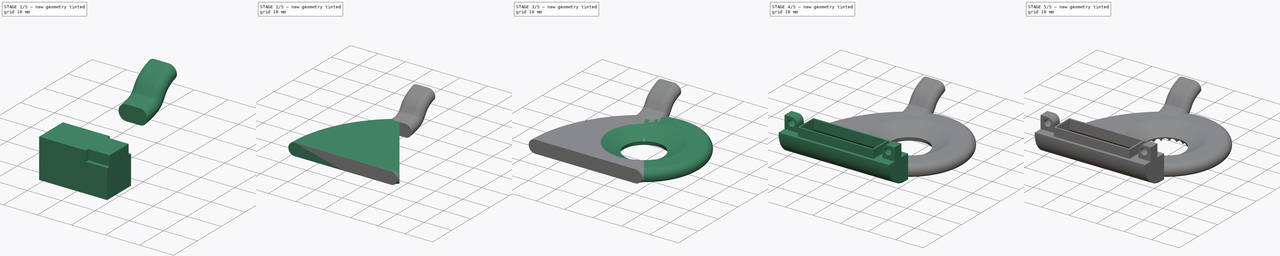
[diagram: build sequence overview — one tinted view per stage of 5, left to right]
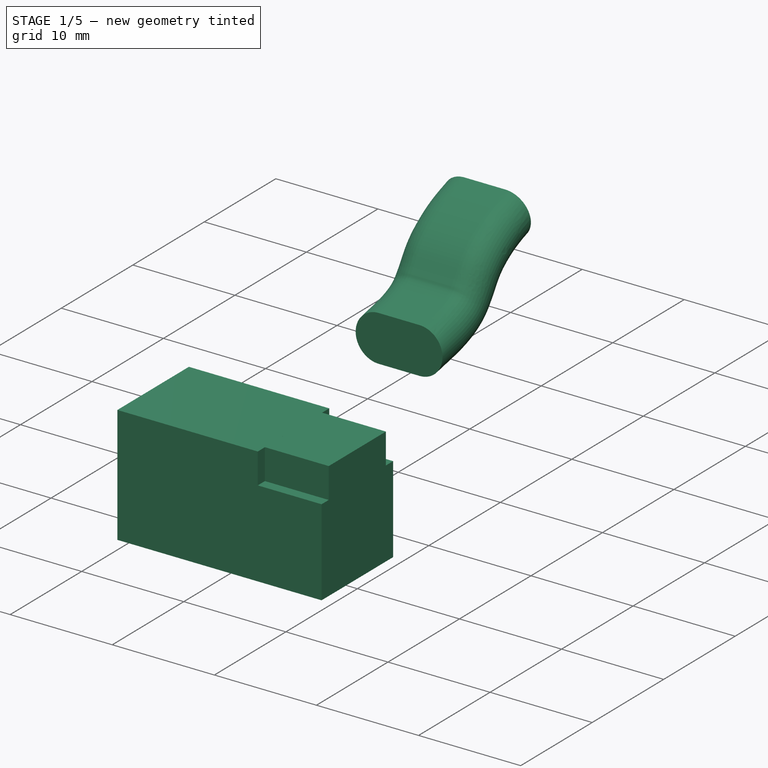
[diagram: stage 1 of 5 — iso view after this stage's code; geometry added in this stage tinted green]
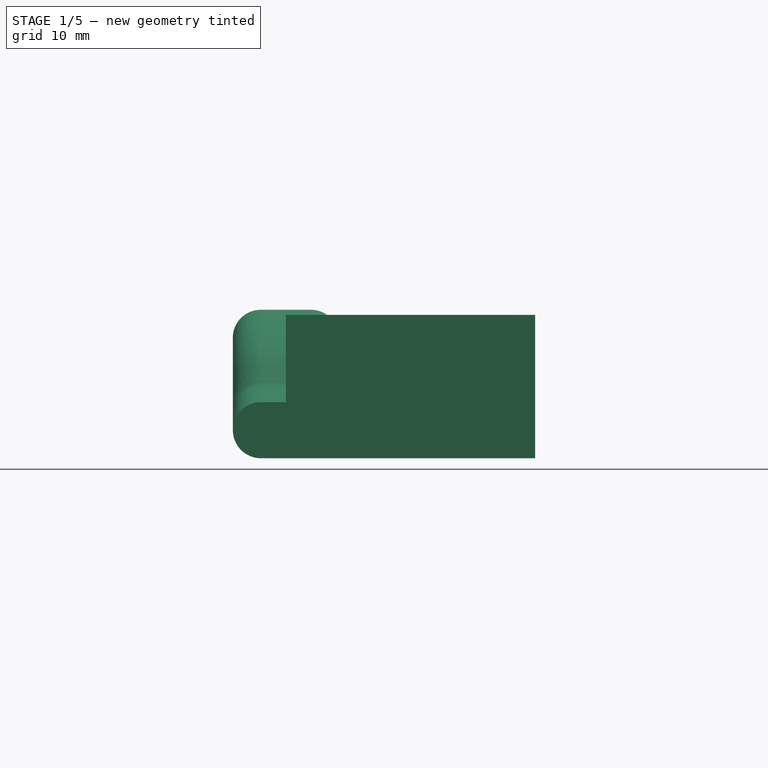
[diagram: stage 1 of 5 — front view after this stage's code; geometry added in this stage tinted green]
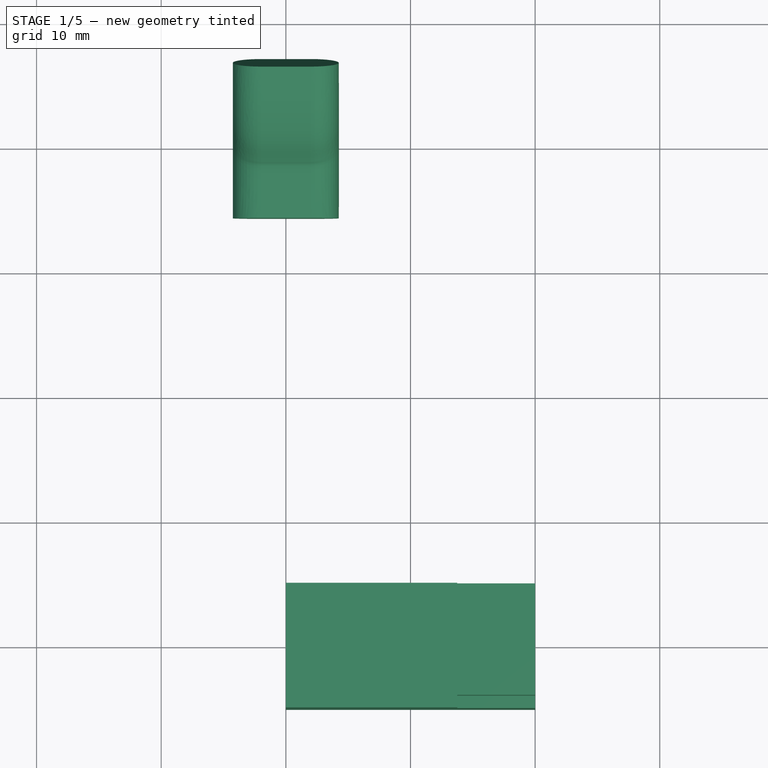
[diagram: stage 1 of 5 — top view after this stage's code; geometry added in this stage tinted green]
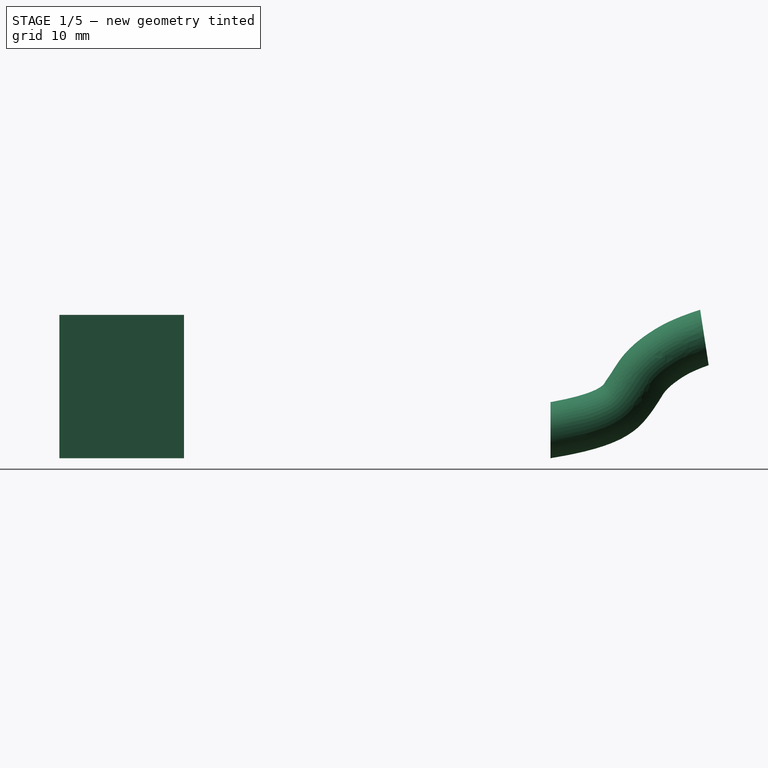
[diagram: stage 1 of 5 — right view after this stage's code; geometry added in this stage tinted green]
FCSTD DOCUMENT  (FreeCAD 0.18R16131 (Git))
Label: Cr-10 ExtruderFan
License: All rights reserved
LicenseURL: http://en.wikipedia.org/wiki/All_rights_reserved
objects: Sketcher::SketchObject×19, Part::Extrusion×11, Part::MultiFuse×7, Part::Cut×6, Part::Sweep×3, Part::MultiCommon×2, Part::Revolution×2, Part::Mirroring×1, Part::FeaturePython×1
note: 52 computed .brp shape members not serialized (recipe doc carries the construction recipe); baked Part::Feature solids carry a one-line shape summary decoded from their .brp

FEATURE [Sketcher::SketchObject] Sketch001  label="FrontExt"
  MapMode = 5
  Placement = pos=(0,0,0) rot=(1,0,0;1.5708rad)
  sketch-geometry (6):
    g0: LineSegment StartX=20 StartY=8.5 StartZ=0 EndX=20 EndY=0 EndZ=0
    g1: LineSegment StartX=13.75 StartY=8.5 StartZ=0 EndX=13.75 EndY=11.5 EndZ=0
    g2: LineSegment StartX=13.75 StartY=8.5 StartZ=0 EndX=20 EndY=8.5 EndZ=0
    g3: LineSegment StartX=13.75 StartY=11.5 StartZ=0 EndX=0 EndY=11.5 EndZ=0
    g4: LineSegment StartX=0 StartY=11.5 StartZ=0 EndX=0 EndY=0 EndZ=0
    g5: LineSegment StartX=0 StartY=0 StartZ=0 EndX=20 EndY=0 EndZ=0
  constraints (17):
    c: Coincident(g2,g0)
    c: Vertical(g0)
    c: PointOnObject(g0,g-1)
    c: DistanceY(g0,g2) = 8.5
    c: Vertical(g1)
    c: Coincident(g2,g1)
    c: DistanceY(g1,g1) = 3
    c: DistanceX(g-1,g0) = 20
    c: Coincident(g3,g1)
    c: Horizontal(g3)
    c: DistanceX(g3,g1) = 13.75
    c: Coincident(g4,g3)
    c: Coincident(g4,g-1)
    c: Coincident(g5,g4)
    c: Coincident(g5,g0)
    c: Vertical(g4)
    c: Horizontal(g2)
FEATURE [Sketcher::SketchObject] Sketch  label="RightExt"
  MapMode = 5
  Placement = pos=(0,0,0) rot=(0.57735,0.57735,0.57735;2.0944rad)
  sketch-geometry (9):
    g0: LineSegment StartX=3 StartY=0 StartZ=0 EndX=5 EndY=0 EndZ=0
    g1: LineSegment StartX=5 StartY=0 StartZ=0 EndX=5 EndY=8.5 EndZ=0
    g2: LineSegment StartX=-5 StartY=8.5 StartZ=0 EndX=-5 EndY=8 EndZ=0
    g3: LineSegment StartX=4 StartY=8.5 StartZ=0 EndX=5 EndY=8.5 EndZ=0
    g4: LineSegment StartX=-4 StartY=8.5 StartZ=0 EndX=-4 EndY=11.5 EndZ=0
    g5: LineSegment StartX=-4 StartY=11.5 StartZ=0 EndX=4 EndY=11.5 EndZ=0
    g6: LineSegment StartX=4 StartY=11.5 StartZ=0 EndX=4 EndY=8.5 EndZ=0
    g7: LineSegment StartX=-4 StartY=8.5 StartZ=0 EndX=-5 EndY=8.5 EndZ=0
    g8: ArcOfCircle CenterX=3 CenterY=8 CenterZ=0 NormalX=0 NormalY=0 NormalZ=1 AngleXU=0 Radius=8 StartAngle=3.14159 EndAngle=4.71239
  constraints (24):
    c: Coincident(g0,g1)
    c: Coincident(g7,g2)
    c: Horizontal(g0)
    c: Vertical(g1)
    c: Vertical(g2)
    c: DistanceX(g7,g1) = 10
    c: PointOnObject(g0,g-1)
    c: Symmetric(g1,g7,g-2)
    c: DistanceY(g0,g1) = 8.5
    c: Coincident(g4,g5)
    c: Coincident(g5,g6)
    c: Horizontal(g3)
    c: Vertical(g4)
    c: Vertical(g6)
    c: DistanceY(g6,g5) = 3
    c: Symmetric(g4,g5,g-2)
    c: Coincident(g4,g7)
    c: Coincident(g3,g6)
    c: Coincident(g3,g1)
    c: Horizontal(g7)
    c: DistanceX(g4,g5) = 8
    c: Tangent(g0,g8) = -1.5708
    c: Tangent(g2,g8) = -1.5708
    c: Radius(g8) = 8
FEATURE [Sketcher::SketchObject] Sketch002  label="RightInt"
  ExternalGeometry = -> [Sketch]
  Placement = pos=(0,0,0) rot=(0.57735,0.57735,0.57735;2.0944rad)
  sketch-geometry (8):
    g0: LineSegment StartX=-3.5 StartY=11.5 StartZ=0 EndX=-3.5 EndY=8 EndZ=0
    g1: LineSegment StartX=-3.5 StartY=11.5 StartZ=0 EndX=3.5 EndY=11.5 EndZ=0
    g2: LineSegment StartX=3.5 StartY=11.5 StartZ=0 EndX=3.5 EndY=8 EndZ=0
    g3: LineSegment StartX=3.5 StartY=8 StartZ=0 EndX=4.5 EndY=7 EndZ=0
    g4: LineSegment StartX=4.5 StartY=7 StartZ=0 EndX=4.5 EndY=0.5 EndZ=0
    g5: LineSegment StartX=4.5 StartY=0.5 StartZ=0 EndX=3 EndY=0.5 EndZ=0
    g6: ArcOfCircle CenterX=3 CenterY=8 CenterZ=0 NormalX=0 NormalY=0 NormalZ=1 AngleXU=0 Radius=7.5 StartAngle=3.26736 EndAngle=4.71239
    g7: LineSegment StartX=-3.5 StartY=8 StartZ=0 EndX=-4.44076 EndY=7.05924 EndZ=0
  constraints (23):
    c: Vertical(g0)
    c: Horizontal(g1)
    c: Coincident(g2,g1)
    c: Vertical(g2)
    c: Coincident(g3,g2)
    c: Coincident(g4,g3)
    c: Vertical(g4)
    c: Coincident(g1,g0)
    c: Angle(g3,g2) = 2.35619
    c: DistanceY(g1,g-4) = 0
    c: DistanceX(g1,g-4) = 0.5
    c: DistanceX(g-7,g0) = 0.5
    c: Coincident(g5,g4)
    c: Horizontal(g5)
    c: Coincident(g6,g-9)
    c: Tangent(g6,g5) = 1.5708
    c: Radius(g6) = 7.5
    c: Coincident(g7,g0)
    c: Coincident(g7,g6)
    c: Angle(g0,g7) = 2.35619
    c: DistanceY(g2,g-5) = 0.5
    c: DistanceY(g0,g-8) = 0.5
    c: DistanceX(g4,g-10) = 0.5
FEATURE [Sketcher::SketchObject] Sketch003  label="FrontInt"
  ExternalGeometry = -> [Sketch001]
  Placement = pos=(0,0,0) rot=(1,0,0;1.5708rad)
  sketch-geometry (6):
    g0: LineSegment StartX=0 StartY=11.5 StartZ=0 EndX=13.25 EndY=11.5 EndZ=0
    g1: LineSegment StartX=13.25 StartY=11.5 StartZ=0 EndX=13.25 EndY=8 EndZ=0
    g2: LineSegment StartX=13.25 StartY=8 StartZ=0 EndX=19.5 EndY=4.5 EndZ=0
    g3: LineSegment StartX=19.5 StartY=4.5 StartZ=0 EndX=19.5 EndY=0.5 EndZ=0
    g4: LineSegment StartX=19.5 StartY=0.5 StartZ=0 EndX=0 EndY=0.5 EndZ=0
    g5: LineSegment StartX=0 StartY=0.5 StartZ=0 EndX=0 EndY=11.5 EndZ=0
  constraints (18):
    c: Horizontal(g0)
    c: Coincident(g1,g0)
    c: Vertical(g1)
    c: Coincident(g2,g1)
    c: Coincident(g3,g2)
    c: Vertical(g3)
    c: Coincident(g4,g3)
    c: Horizontal(g4)
    c: Coincident(g5,g4)
    c: Coincident(g5,g0)
    c: Vertical(g5)
    c: DistanceY(g-6,g3) = 0.5
    c: DistanceX(g3,g-6) = 0.5
    c: DistanceX(g0,g-8) = 0.5
    c: DistanceX(g-4,g0) = 0
    c: DistanceY(g0,g-4) = 0
    c: DistanceY(g-6,g2) = 4.5
    c: DistanceY(g1,g-8) = 0.5
FEATURE [Part::Extrusion] Extrude  label="ExtrudeRightExt"
  Base = -> Sketch
  Dir = (1,0,0)
  DirMode = 2
  FaceMakerClass = Part::FaceMakerBullseye
  LengthFwd = 20
  LengthRev = 0
  Solid = true
  Symmetric = false
FEATURE [Part::Extrusion] Extrude001  label="ExtrudeFrontExt"
  Base = -> Sketch001
  Dir = (0,-1,0)
  DirMode = 2
  FaceMakerClass = Part::FaceMakerBullseye
  LengthFwd = 10
  LengthRev = 0
  Solid = true
  Symmetric = true
FEATURE [Part::Extrusion] Extrude002  label="ExtrudeFrontInt"
  Base = -> Sketch003
  Dir = (0,-1,0)
  DirMode = 2
  FaceMakerClass = Part::FaceMakerBullseye
  LengthFwd = 9
  LengthRev = 0
  Solid = true
  Symmetric = true
FEATURE [Part::Extrusion] Extrude003  label="ExtrudeRightInt"
  Base = -> Sketch002
  Dir = (1,0,0)
  DirMode = 2
  FaceMakerClass = Part::FaceMakerBullseye
  LengthFwd = 19.5
  LengthRev = 0
  Solid = true
  Symmetric = false
FEATURE [Part::MultiCommon] Common001  label="Interior"
  Shapes = -> [Extrude003,Extrude002]
FEATURE [Sketcher::SketchObject] Sketch017  label="Support001"
  Placement = pos=(0,0,0) rot=(0.57735,0.57735,0.57735;2.0944rad)
  sketch-geometry (17):
    g0: LineSegment [constr] StartX=43.8 StartY=4.5 StartZ=0 EndX=47.8 EndY=4.5 EndZ=0
    g1: LineSegment [constr] StartX=43.8 StartY=5.5 StartZ=0 EndX=47.8 EndY=5.5 EndZ=0
    g2: LineSegment [constr] StartX=43.8 StartY=5.5 StartZ=0 EndX=43.8 EndY=4.5 EndZ=0
    g3: LineSegment StartX=34.3996 StartY=0 StartZ=0 EndX=34.3996 EndY=4.5 EndZ=0
    g4-g10: Circle [constr] x7 (B-spline internal-alignment scaffolding for g11; pole/knot coordinates omitted)
    g11: BSplineCurve PolesCount=7 KnotsCount=5 Degree=3 IsPeriodic=0
    g12-g16: GeomPoint [constr] x5 (B-spline internal-alignment scaffolding for g11; pole/knot coordinates omitted)
  constraints (18):
    c: Horizontal(g0)
    c: DistanceX(g-1,g0) = 43.8
    c: DistanceY(g0) = 4.5
    c: Horizontal(g1)
    c: DistanceY(g0,g1) = 1
    c: Coincident(g2,g1)
    c: Coincident(g2,g0)
    c: Vertical(g2)
    c: DistanceX(g1,g1) = 4
    c: PointOnObject(g3,g-1)
    c: Vertical(g3)
    c: DistanceY(g3,g3) = 4.5
    c: Radius(g4) = 0.4
    c: Equal(g4, g5-g10) x6
    c: InternalAlignment(g4-g10 -> g11) x7
    c: InternalAlignment(g12-g16 -> g11) x5
    c: DistanceY(g-1,g11) = 2.25
    c: PointOnObject(g11,g3)
FEATURE [Part::Extrusion] Extrude010
  Base = -> Sketch017
  Dir = (1,0,0)
  DirMode = 2
  FaceMakerClass = Part::FaceMakerBullseye
  LengthFwd = 10
  LengthRev = 0
  Solid = false
  Symmetric = false
FEATURE [Sketcher::SketchObject] Sketch018
  ExternalGeometry = -> [Extrude010]
  MapMode = 5
  Placement = pos=(3.8841e-12,34.3996,-3.8841e-12) rot=(1,0,0;1.5708rad)
  Support = -> [Extrude010]
  sketch-geometry (4):
    g0: LineSegment StartX=-2 StartY=4.5 StartZ=0 EndX=2 EndY=4.5 EndZ=0
    g1: LineSegment StartX=-2 StartY=0 StartZ=0 EndX=2 EndY=0 EndZ=0
    g2: ArcOfCircle CenterX=-2 CenterY=2.25 CenterZ=0 NormalX=0 NormalY=0 NormalZ=1 AngleXU=0 Radius=2.25 StartAngle=1.5708 EndAngle=4.71239
    g3: ArcOfCircle CenterX=2 CenterY=2.25 CenterZ=0 NormalX=0 NormalY=0 NormalZ=1 AngleXU=0 Radius=2.25 StartAngle=4.71239 EndAngle=7.85398
  constraints (9):
    c: Horizontal(g0)
    c: Tangent(g3,g0) = 1.5708
    c: Tangent(g2,g0) = 1.5708
    c: Tangent(g2,g1) = -1.5708
    c: Tangent(g3,g1) = -1.5708
    c: DistanceX(g2,g3) = 4
    c: Radius(g3) = 2.25
    c: Symmetric(g3,g2,g-2)
    c: DistanceY(g-1,g1) = 0
FEATURE [Part::Sweep] Sweep002  label="Support"
  Frenet = false
  Sections = -> [Sketch018]
  Solid = true
  Spine = -> Sketch017 [Edge2]
  Transition = 1
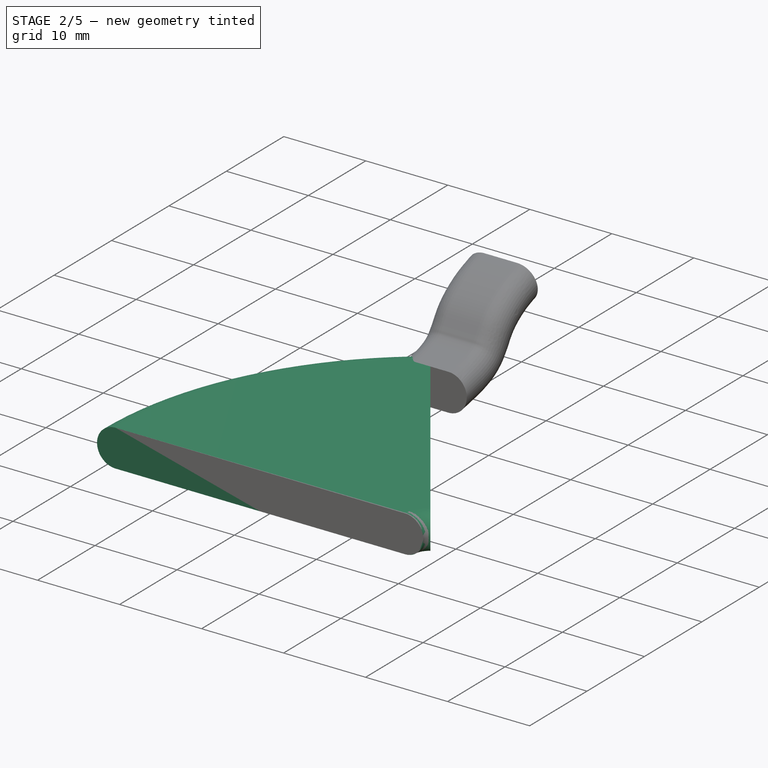
[diagram: stage 2 of 5 — iso view after this stage's code; geometry added in this stage tinted green]
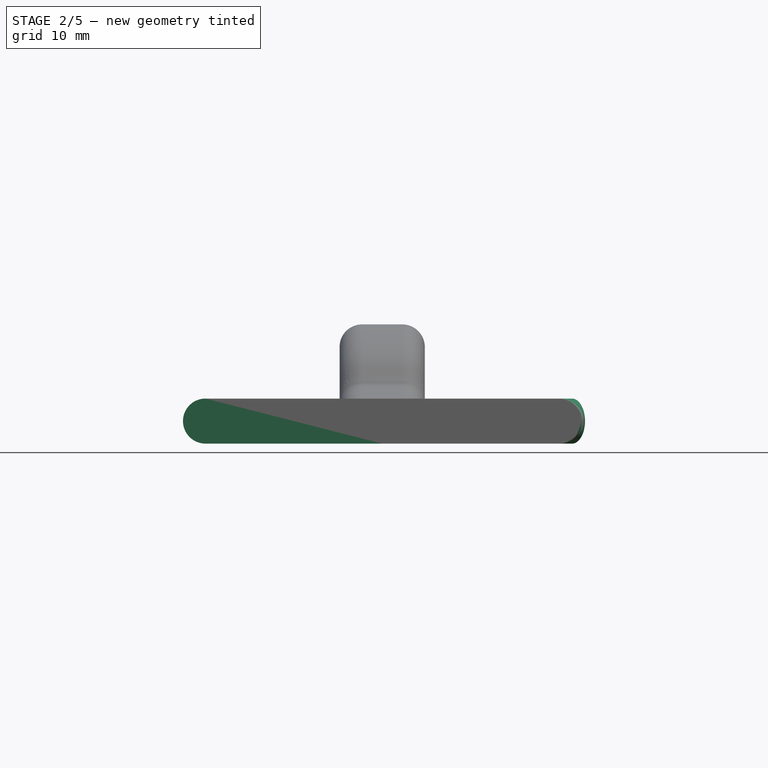
[diagram: stage 2 of 5 — front view after this stage's code; geometry added in this stage tinted green]
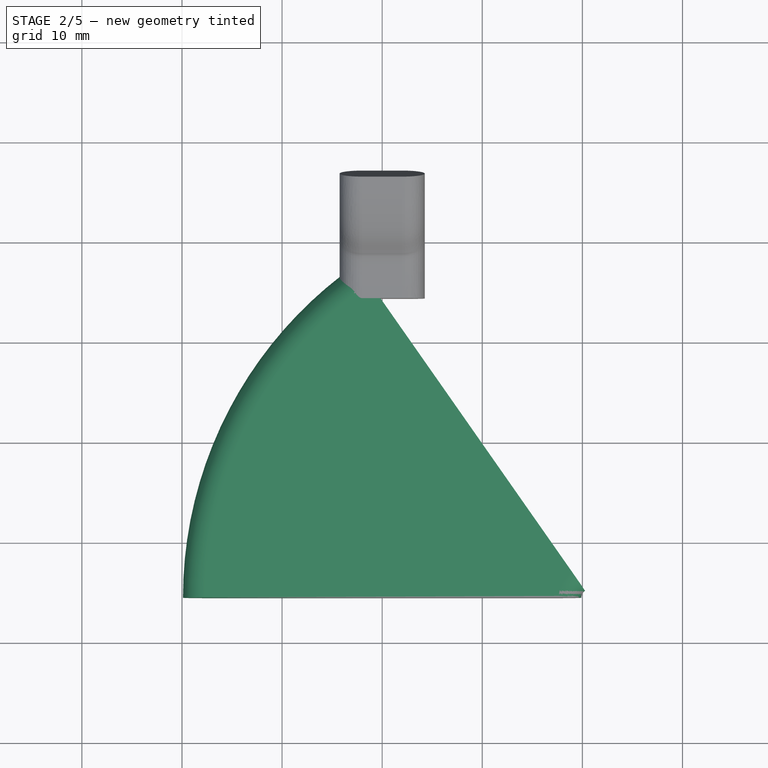
[diagram: stage 2 of 5 — top view after this stage's code; geometry added in this stage tinted green]
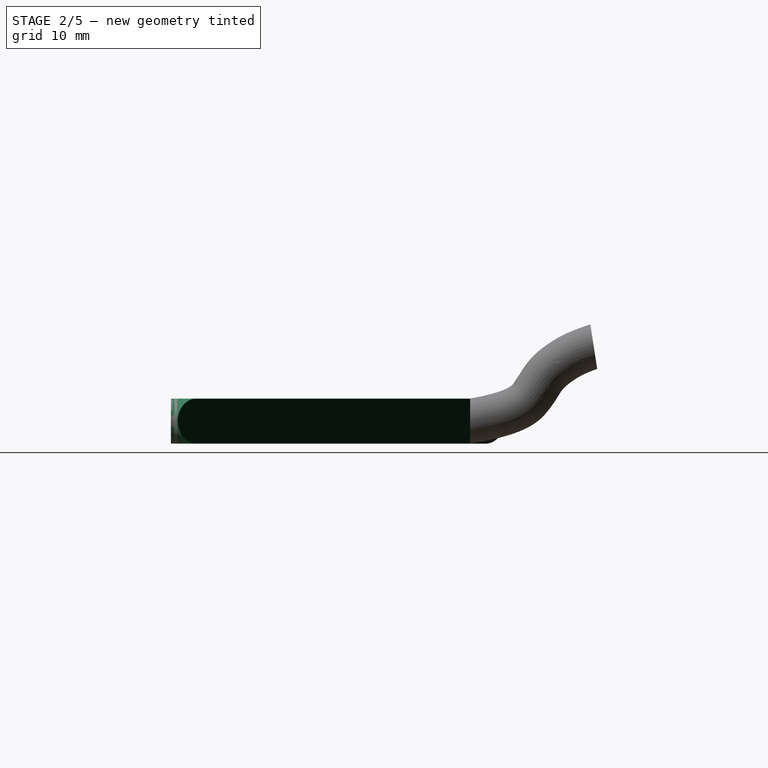
[diagram: stage 2 of 5 — right view after this stage's code; geometry added in this stage tinted green]
FEATURE [Part::MultiCommon] Common  label="Exterior"
  Shapes = -> [Extrude001,Extrude]
FEATURE [Part::Cut] Cut  label="Half"
  Base = -> Common
  Tool = -> Common001
FEATURE [Sketcher::SketchObject] Sketch004  label="ScrewHole"
  ExternalGeometry = -> [Cut]
  Placement = pos=(0,0,0) rot=(1,0,0;1.5708rad)
  sketch-geometry (6):
    g0: LineSegment StartX=20 StartY=8.5 StartZ=0 EndX=20 EndY=13.1 EndZ=0
    g1: LineSegment StartX=20 StartY=13.1 StartZ=0 EndX=17.5 EndY=13.1 EndZ=0
    g2: LineSegment StartX=20 StartY=8.5 StartZ=0 EndX=15.5 EndY=8.5 EndZ=0
    g3: LineSegment StartX=15.5 StartY=8.5 StartZ=0 EndX=15.5 EndY=11.1 EndZ=0
    g4: Circle CenterX=17.5 CenterY=11.1 CenterZ=0 NormalX=0 NormalY=0 NormalZ=1 AngleXU=0 Radius=1.2
    g5: ArcOfCircle CenterX=17.5 CenterY=11.1 CenterZ=0 NormalX=0 NormalY=0 NormalZ=1 AngleXU=0 Radius=2 StartAngle=1.5708 EndAngle=3.14159
  constraints (16):
    c: Coincident(g0,g-3)
    c: Vertical(g0)
    c: Coincident(g1,g0)
    c: Horizontal(g1)
    c: Coincident(g2,g0)
    c: Horizontal(g2)
    c: Coincident(g3,g2)
    c: Vertical(g3)
    c: DistanceX(g2,g0) = 4.5
    c: DistanceY(g0,g0) = 4.6
    c: DistanceY(g0,g4) = 2.6
    c: DistanceX(g4,g0) = 2.5
    c: Radius(g4) = 1.2
    c: Coincident(g5,g4)
    c: Coincident(g5,g3)
    c: Tangent(g5,g1) = -1.5708
FEATURE [Part::Extrusion] Extrude004  label="ExtrudeScrewHole"
  Base = -> Sketch004
  Dir = (0,-1,0)
  DirMode = 2
  FaceMakerClass = Part::FaceMakerBullseye
  LengthFwd = 1.95
  LengthRev = 1.55
  Solid = true
  Symmetric = false
FEATURE [Part::MultiFuse] Fusion  label="HalfInput"
  Shapes = -> [Extrude004,Cut]
FEATURE [Part::Mirroring] Part__Mirroring  label="HalfInput (Mirror #1)"
  Base = (0,0,0)
  Normal = (1,0,0)
  Source = -> Fusion
FEATURE [Part::MultiFuse] Fusion001  label="Input"
  Shapes = -> [Part__Mirroring,Fusion]
FEATURE [Sketcher::SketchObject] Sketch005  label="ProfileExt"
  ExternalGeometry = -> [Fusion001]
  MapMode = 5
  Placement = pos=(0,4.5,0) rot=(1,0,0;1.5708rad)
  Support = -> [Fusion001]
  sketch-geometry (6):
    g0: LineSegment StartX=0 StartY=0 StartZ=0 EndX=17.65 EndY=0 EndZ=0
    g1: LineSegment StartX=-17.65 StartY=4.5 StartZ=0 EndX=17.65 EndY=4.5 EndZ=0
    g2: ArcOfCircle CenterX=17.65 CenterY=2.25 CenterZ=0 NormalX=0 NormalY=0 NormalZ=1 AngleXU=0 Radius=2.25 StartAngle=4.71239 EndAngle=7.85398
    g3: LineSegment StartX=0 StartY=0 StartZ=0 EndX=-17.65 EndY=0 EndZ=0
    g4: ArcOfCircle CenterX=-17.65 CenterY=2.25 CenterZ=0 NormalX=0 NormalY=0 NormalZ=1 AngleXU=0 Radius=2.25 StartAngle=1.5708 EndAngle=4.71239
    g5: LineSegment [constr] StartX=19.9 StartY=9 StartZ=0 EndX=19.9 EndY=0 EndZ=0
  constraints (12):
    c: Coincident(g0,g-1)
    c: Horizontal(g0)
    c: Horizontal(g1)
    c: Tangent(g2,g1) = 1.5708
    c: Tangent(g2,g0) = -1.5708
    c: Coincident(g3,g0)
    c: Tangent(g4,g1) = 1.5708
    c: Tangent(g4,g3) = 1.5708
    c: Radius(g2) = 2.25
    c: Symmetric(g2,g4,g-2)
    c: Vertical(g5)
    c: Tangent(g5,g2)
FEATURE [Sketcher::SketchObject] Sketch006  label="ProfileInt"
  ExternalGeometry = -> [Fusion001]
  MapMode = 5
  Placement = pos=(0,4.5,0) rot=(1,0,0;1.5708rad)
  Support = -> [Fusion001]
  sketch-geometry (6):
    g0: LineSegment StartX=-17.65 StartY=4 StartZ=0 EndX=17.65 EndY=4 EndZ=0
    g1: LineSegment StartX=-17.65 StartY=0.5 StartZ=0 EndX=0 EndY=0.5 EndZ=0
    g2: LineSegment StartX=0 StartY=0.5 StartZ=0 EndX=17.65 EndY=0.5 EndZ=0
    g3: ArcOfCircle CenterX=17.65 CenterY=2.25 CenterZ=0 NormalX=0 NormalY=0 NormalZ=1 AngleXU=0 Radius=1.75 StartAngle=4.71239 EndAngle=7.85398
    g4: ArcOfCircle CenterX=-17.65 CenterY=2.25 CenterZ=0 NormalX=0 NormalY=0 NormalZ=1 AngleXU=0 Radius=1.75 StartAngle=1.5708 EndAngle=4.71239
    g5: LineSegment [constr] StartX=19.4 StartY=0 StartZ=0 EndX=19.4 EndY=10 EndZ=0
  constraints (14):
    c: Horizontal(g0)
    c: Coincident(g2,g1)
    c: Tangent(g4,g0) = 1.5708
    c: Tangent(g4,g1) = -1.5708
    c: Tangent(g3,g0) = 1.5708
    c: Tangent(g3,g2) = -1.5708
    c: PointOnObject(g1,g-2)
    c: DistanceY(g-1,g1) = 0.5
    c: Radius(g3) = 1.75
    c: Symmetric(g3,g4,g-2)
    c: Horizontal(g2)
    c: Vertical(g5)
    c: Tangent(g5,g3)
    c: DistanceY(g5,g5) = 10
FEATURE [Sketcher::SketchObject] Sketch007  label="Path"
  ExternalGeometry = -> [Fusion001]
  sketch-geometry (2):
    g0: LineSegment [constr] StartX=0 StartY=21.5 StartZ=0 EndX=8.85 EndY=21.5 EndZ=0
    g1: ArcOfCircle CenterX=20.7527 CenterY=4.5 CenterZ=0 NormalX=0 NormalY=0 NormalZ=1 AngleXU=0 Radius=20.7527 StartAngle=2.18163 EndAngle=3.14159
  constraints (7):
    c: Horizontal(g0)
    c: PointOnObject(g0,g-2)
    c: DistanceY(g-3,g0) = 17
    c: DistanceX(g0,g0) = 8.85
    c: PointOnObject(g1,g-3)
    c: Coincident(g1,g0)
    c: Coincident(g1,g-3)
FEATURE [Part::Sweep] Sweep  label="JunctionExt"
  Frenet = false
  Sections = -> [Sketch005]
  Solid = true
  Spine = -> Sketch007 [Edge1]
  Transition = 1
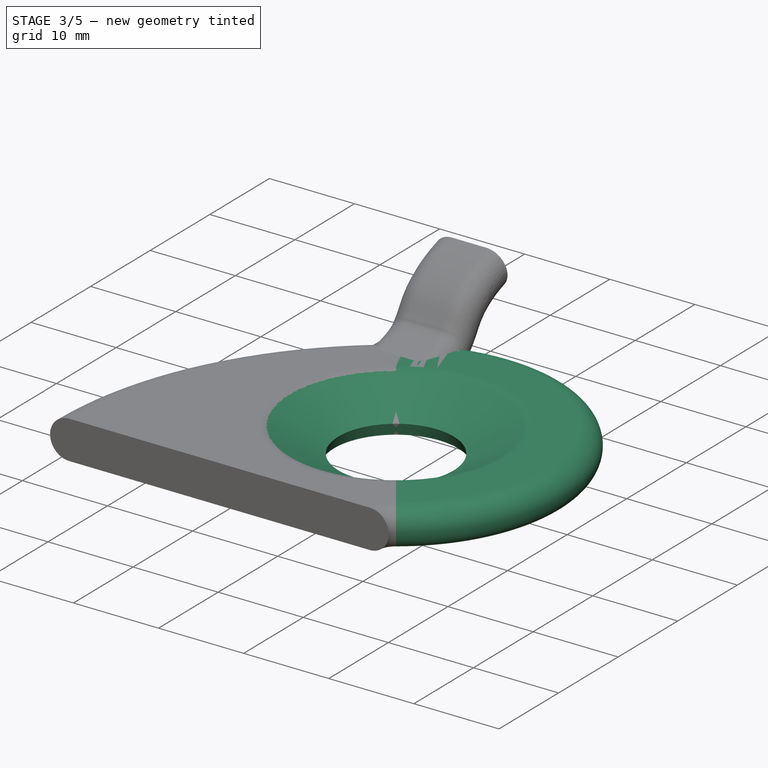
[diagram: stage 3 of 5 — iso view after this stage's code; geometry added in this stage tinted green]
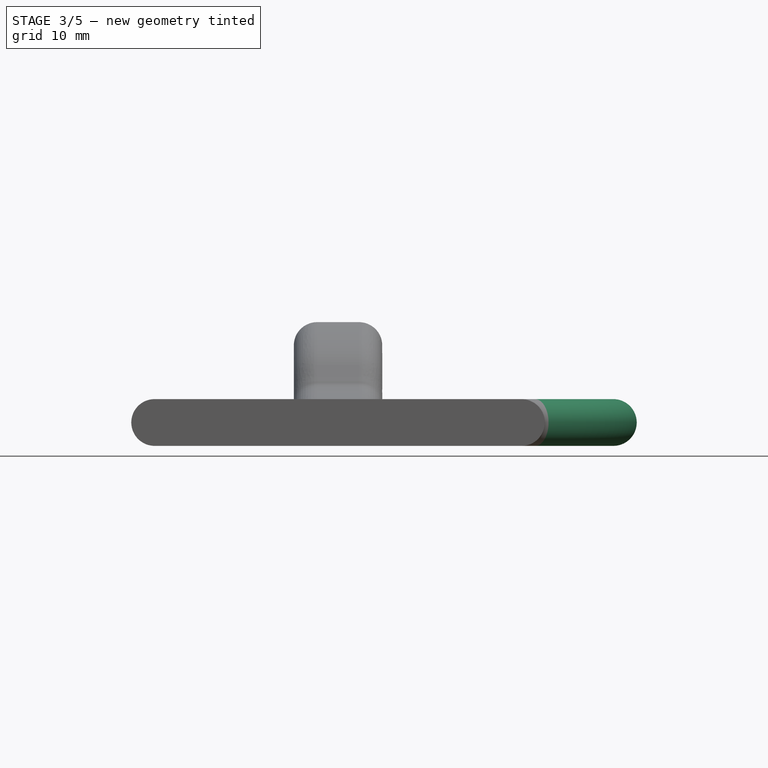
[diagram: stage 3 of 5 — front view after this stage's code; geometry added in this stage tinted green]
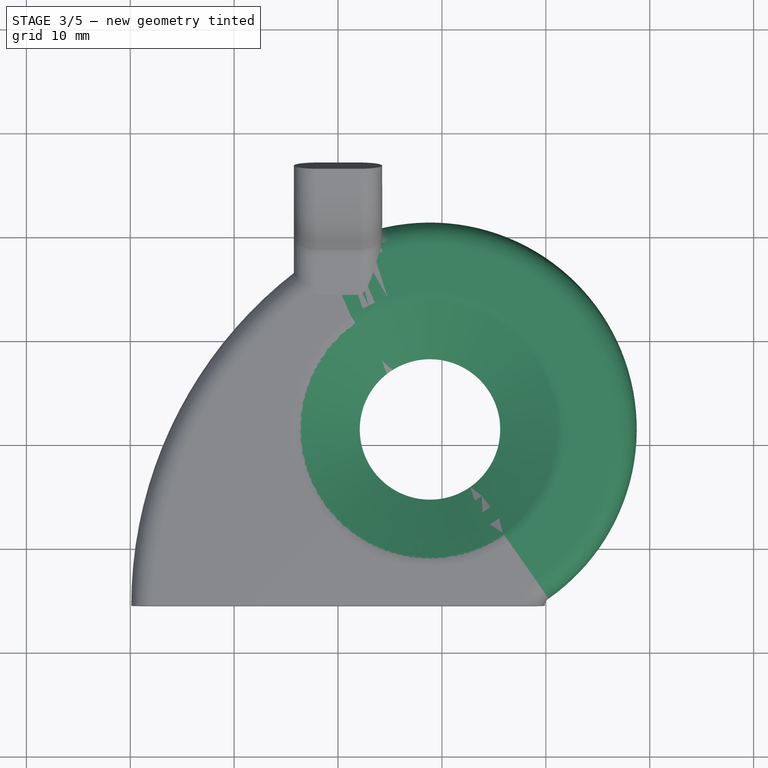
[diagram: stage 3 of 5 — top view after this stage's code; geometry added in this stage tinted green]
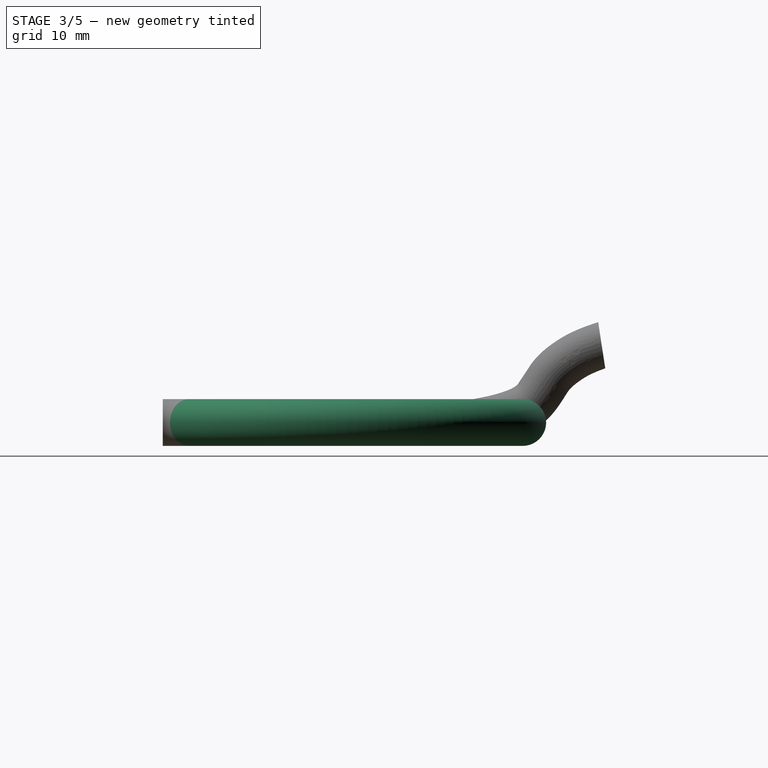
[diagram: stage 3 of 5 — right view after this stage's code; geometry added in this stage tinted green]
FEATURE [Sketcher::SketchObject] Sketch008
  ExternalGeometry = -> [Sketch007,Sweep]
  sketch-geometry (1):
    g0: Circle CenterX=8.85 CenterY=21.5 CenterZ=0 NormalX=0 NormalY=0 NormalZ=1 AngleXU=0 Radius=17.65
  constraints (2):
    c: Coincident(g0,g-3)
    c: PointOnObject(g-4,g0)
FEATURE [Part::Extrusion] Extrude005  label="Cylinder1"
  Base = -> Sketch008
  Dir = (0,0,1)
  DirMode = 2
  FaceMakerClass = Part::FaceMakerBullseye
  LengthFwd = 4.5
  LengthRev = 0
  Solid = true
  Symmetric = false
FEATURE [Sketcher::SketchObject] Sketch009  label="ProfileTorExt"
  ExternalGeometry = -> [Sweep]
  MapMode = 5
  Placement = pos=(16.0402,11.2306,-3.5e-14) rot=(0.34545,0.663575,0.663575;2.47636rad)
  Support = -> [Sweep]
  sketch-geometry (12):
    g0: GeomPoint X=12.5363 Y=2.25 Z=0
    g1: ArcOfCircle CenterX=30.1863 CenterY=2.25 CenterZ=0 NormalX=0 NormalY=0 NormalZ=1 AngleXU=0 Radius=2.25 StartAngle=4.71239 EndAngle=7.85398
    g2: LineSegment [constr] StartX=23.5363 StartY=7.25 StartZ=0 EndX=23.5363 EndY=-2.75 EndZ=0
    g3: LineSegment StartX=30.1863 StartY=4.5 StartZ=0 EndX=25.7863 EndY=4.5 EndZ=0
    g4: LineSegment StartX=30.1863 StartY=-1.91e-14 StartZ=0 EndX=25.7863 EndY=-1.91e-14 EndZ=0
    g5: ArcOfCircle [constr] CenterX=25.7863 CenterY=2.25 CenterZ=0 NormalX=0 NormalY=0 NormalZ=1 AngleXU=0 Radius=2.25 StartAngle=1.5708 EndAngle=4.71239
    g6: LineSegment StartX=24.7463 StartY=4.24523 StartZ=0 EndX=19.2942 EndY=1.4034 EndZ=0
    g7: LineSegment StartX=19.2942 StartY=1.4034 StartZ=0 EndX=19.8238 EndY=-1.91e-14 EndZ=0
    g8: LineSegment StartX=19.8238 StartY=-1.91e-14 StartZ=0 EndX=25.7863 EndY=-1.91e-14 EndZ=0
    g9: ArcOfCircle CenterX=25.7863 CenterY=2.25 CenterZ=0 NormalX=0 NormalY=0 NormalZ=1 AngleXU=0 Radius=2.25 StartAngle=1.5708 EndAngle=2.05129
    g10: LineSegment [constr] StartX=12.5363 StartY=2.25 StartZ=0 EndX=12.5363 EndY=-2.75 EndZ=0
    g11: LineSegment [constr] StartX=12.5363 StartY=-2.75 StartZ=0 EndX=25.7863 EndY=2.25 EndZ=0
  constraints (30):
    c: Symmetric(g-3,g-4,g0)
    c: Coincident(g1,g-3)
    c: Coincident(g1,g-3)
    c: Coincident(g1,g-3)
    c: Vertical(g2)
    c: DistanceX(g0,g2) = 11
    c: Coincident(g3,g1)
    c: Horizontal(g3)
    c: Coincident(g4,g1)
    c: Horizontal(g4)
    c: Tangent(g5,g3) = -1.5708
    c: Tangent(g5,g4) = 1.5708
    c: Tangent(g5,g2)
    c: DistanceY(g2,g2) = 10
    c: DistanceY(g0,g2) = 5
    c: Coincident(g6,g7)
    c: Coincident(g7,g8)
    c: Coincident(g8,g4)
    c: Coincident(g9,g5)
    c: Coincident(g9,g3)
    c: Coincident(g10,g0)
    c: Vertical(g10)
    c: Coincident(g11,g10)
    c: Coincident(g11,g9)
    c: DistanceY(g10,g0) = 5
    c: Perpendicular(g11,g7)
    c: Tangent(g9,g6) = -1.5708
    c: Horizontal(g8)
    c: Distance(g6,g11) = 1.5
    c: PointOnObject(g7,g11)
FEATURE [Sketcher::SketchObject] Sketch010  label="AxeTor"
  ExternalGeometry = -> [Sweep]
  MapMode = 5
  Placement = pos=(16.0402,11.2306,-3.5e-14) rot=(0.34545,0.663575,0.663575;2.47636rad)
  Support = -> [Sweep]
  sketch-geometry (2):
    g0: GeomPoint X=12.5363 Y=2.25 Z=0
    g1: LineSegment StartX=12.5363 StartY=4.5 StartZ=0 EndX=12.5363 EndY=0 EndZ=0
  constraints (4):
    c: Symmetric(g-4,g-3,g0)
    c: Vertical(g1)
    c: Symmetric(g1,g1,g0)
    c: DistanceY(g1,g1) = 4.5
FEATURE [Part::Revolution] Revolve  label="TorExt"
  Angle = 360
  Axis = (-2.1e-15,0,-1)
  AxisLink = -> Sketch010 [Edge1]
  Base = (8.85,21.5,-1.97e-14)
  FaceMakerClass = Part::FaceMakerBullseye
  Solid = true
  Source = -> Sketch009
  Symmetric = false
FEATURE [Part::Cut] Cut001
  Base = -> Sweep
  Tool = -> Extrude005
FEATURE [Part::MultiFuse] Fusion002  label="FusionExt1"
  Shapes = -> [Cut001,Revolve]
FEATURE [Sketcher::SketchObject] Sketch012  label="Rectangle1"
  MapMode = 5
  Placement = pos=(0,4.5,-8e-16) rot=(1,0,0;1.5708rad)
  Support = -> [Fusion002]
  sketch-geometry (4):
    g0: LineSegment StartX=-24 StartY=7 StartZ=0 EndX=24 EndY=7 EndZ=0
    g1: LineSegment StartX=24 StartY=7 StartZ=0 EndX=24 EndY=-3 EndZ=0
    g2: LineSegment StartX=24 StartY=-3 StartZ=0 EndX=-24 EndY=-3 EndZ=0
    g3: LineSegment StartX=-24 StartY=-3 StartZ=0 EndX=-24 EndY=7 EndZ=0
  constraints (11):
    c: Coincident(g0,g1)
    c: Coincident(g1,g2)
    c: Coincident(g2,g3)
    c: Coincident(g3,g0)
    c: Horizontal(g0)
    c: Vertical(g1)
    c: Vertical(g3)
    c: Symmetric(g1,g2,g-2)
    c: DistanceY(g0) = 7
    c: DistanceY(g1) = -3
    c: DistanceX(g1) = 24
FEATURE [Part::Extrusion] Extrude006  label="Cube1"
  Base = -> Sketch012
  Dir = (0,-1,2e-16)
  DirMode = 2
  FaceMakerClass = Part::FaceMakerBullseye
  LengthFwd = 4
  LengthRev = 0
  Solid = true
  Symmetric = false
FEATURE [Part::Cut] Cut003  label="FlowExt"
  Base = -> Fusion002
  Tool = -> Extrude006
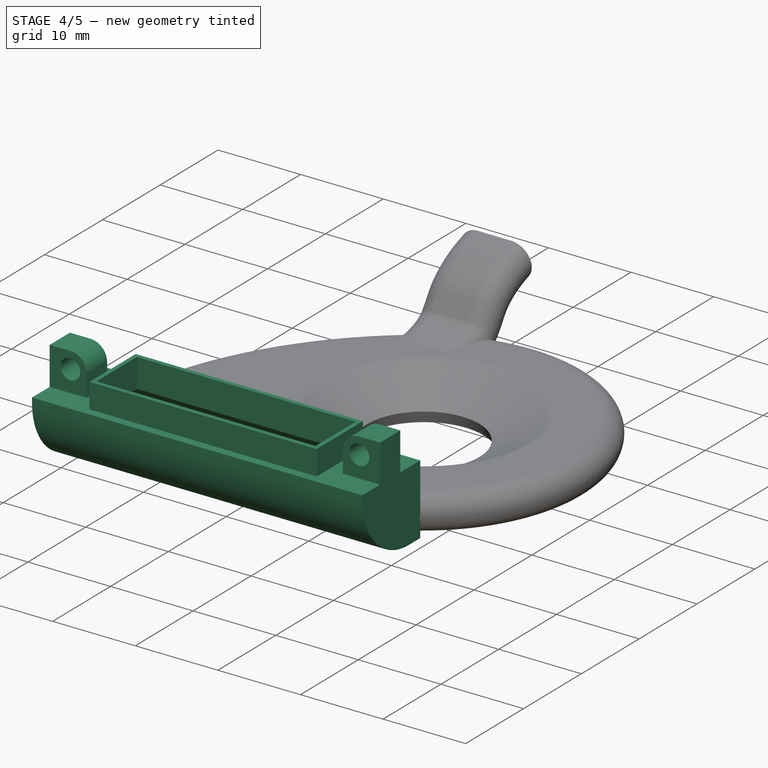
[diagram: stage 4 of 5 — iso view after this stage's code; geometry added in this stage tinted green]
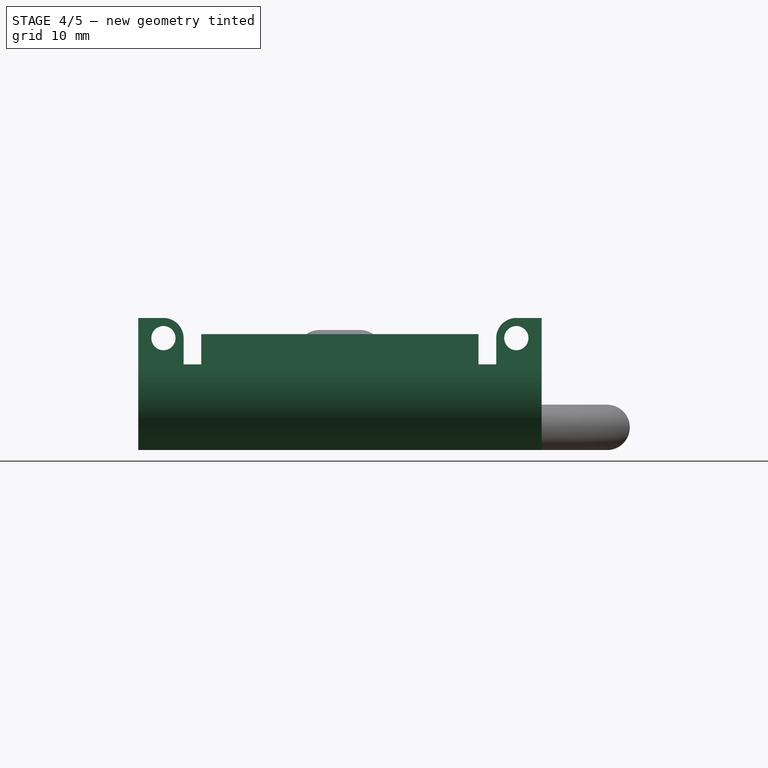
[diagram: stage 4 of 5 — front view after this stage's code; geometry added in this stage tinted green]
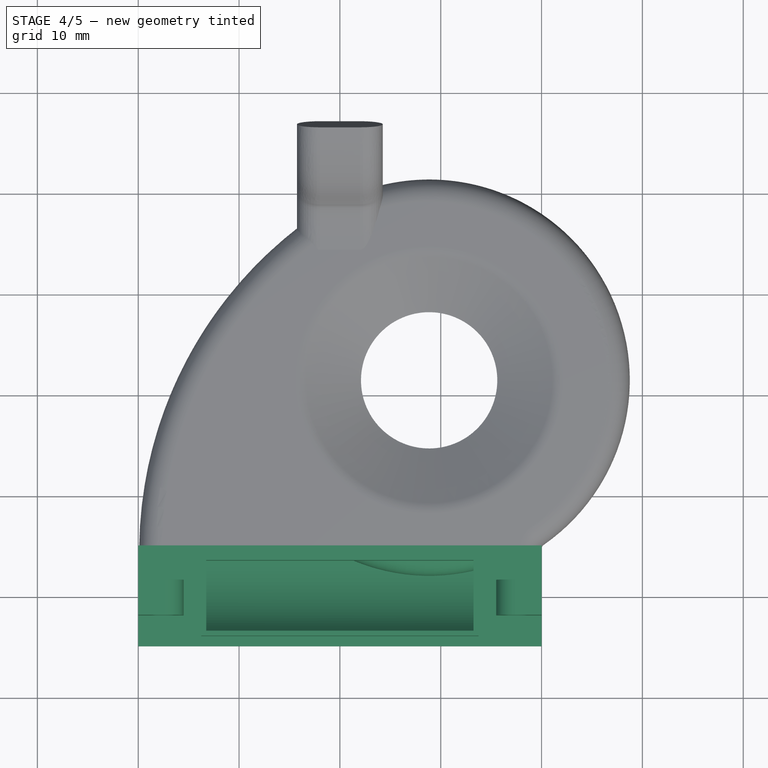
[diagram: stage 4 of 5 — top view after this stage's code; geometry added in this stage tinted green]
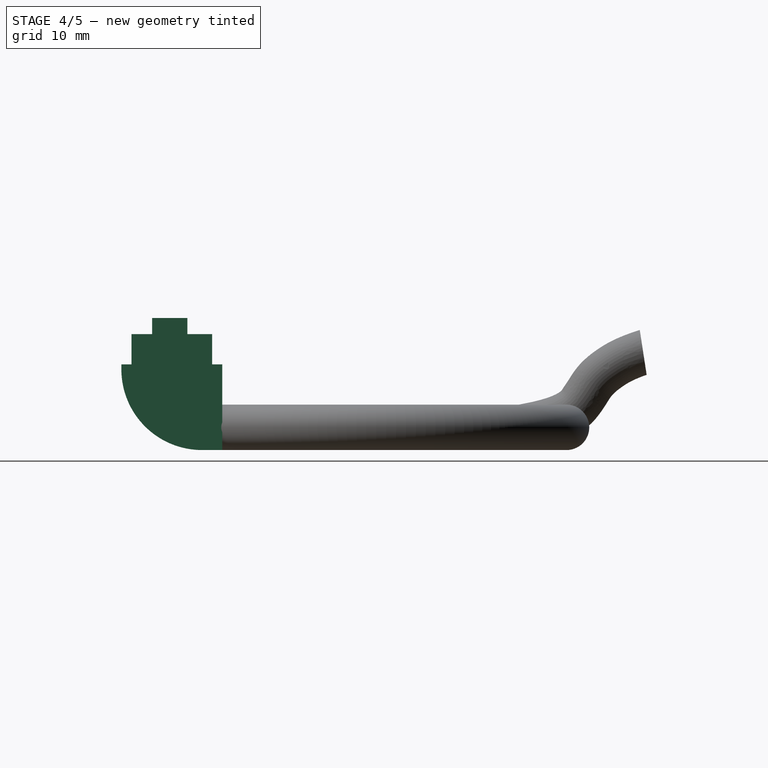
[diagram: stage 4 of 5 — right view after this stage's code; geometry added in this stage tinted green]
FEATURE [Part::Sweep] Sweep001  label="JunctionInt"
  Frenet = false
  Sections = -> [Sketch006]
  Solid = true
  Spine = -> Sketch007 [Edge1]
  Transition = 1
FEATURE [Sketcher::SketchObject] Sketch011  label="ProfileTorInt"
  ExternalGeometry = -> [Sketch009,Sweep]
  MapMode = 5
  Placement = pos=(16.0402,11.2306,-3.5e-14) rot=(0.34545,0.663575,0.663575;2.47636rad)
  Support = -> [Sweep]
  sketch-geometry (4):
    g0: ArcOfCircle CenterX=25.7863 CenterY=2.25 CenterZ=0 NormalX=0 NormalY=0 NormalZ=1 AngleXU=0 Radius=1.75 StartAngle=1.5708 EndAngle=4.71239
    g1: ArcOfCircle CenterX=30.1863 CenterY=2.25 CenterZ=0 NormalX=0 NormalY=0 NormalZ=1 AngleXU=0 Radius=1.75 StartAngle=4.71239 EndAngle=7.85398
    g2: LineSegment StartX=25.7863 StartY=4 StartZ=0 EndX=30.1863 EndY=4 EndZ=0
    g3: LineSegment StartX=30.1863 StartY=0.5 StartZ=0 EndX=25.7863 EndY=0.5 EndZ=0
  constraints (8):
    c: Horizontal(g2)
    c: Tangent(g1,g2) = 1.5708
    c: Tangent(g3,g1) = 1.5708
    c: Tangent(g2,g0) = 1.5708
    c: Tangent(g3,g0) = 1.5708
    c: Coincident(g1,g-4)
    c: Coincident(g0,g-3)
    c: DistanceY(g-4,g1) = 0.5
FEATURE [Part::Revolution] Revolve001  label="TorInt"
  Angle = 360
  Axis = (-2.1e-15,0,-1)
  AxisLink = -> Sketch010 [Edge1]
  Base = (8.85,21.5,-1.97e-14)
  FaceMakerClass = Part::FaceMakerBullseye
  Solid = true
  Source = -> Sketch011
  Symmetric = false
FEATURE [Sketcher::SketchObject] Sketch013
  ExternalGeometry = -> [Sketch007,Sweep001]
  MapMode = 2
  Support = -> [Sketch007]
  sketch-geometry (1):
    g0: Circle CenterX=8.85 CenterY=21.5 CenterZ=0 NormalX=0 NormalY=0 NormalZ=1 AngleXU=0 Radius=17.65
  constraints (2):
    c: Coincident(g0,g-3)
    c: PointOnObject(g-4,g0)
FEATURE [Part::Extrusion] Extrude007  label="Cylinder2"
  Base = -> Sketch013
  Dir = (0,0,1)
  DirMode = 2
  FaceMakerClass = Part::FaceMakerBullseye
  LengthFwd = 4.5
  LengthRev = 0
  Solid = true
  Symmetric = false
FEATURE [Part::Cut] Cut004
  Base = -> Sweep001
  Tool = -> Extrude007
FEATURE [Part::MultiFuse] Fusion003  label="Int"
  Shapes = -> [Revolve001,Cut004]
FEATURE [Part::MultiFuse] Fusion004  label="Fan"
  Shapes = -> [Fusion001,Cut003]
FEATURE [Part::MultiFuse] Fusion005  label="Ext"
  Shapes = -> [Sweep002,Fusion004]
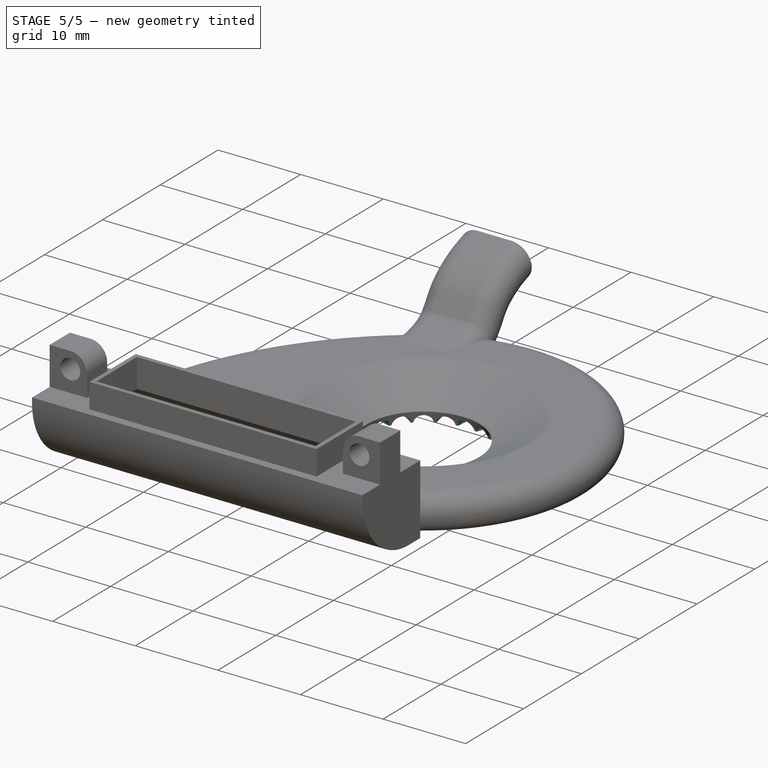
[diagram: stage 5 of 5 — iso view after this stage's code; geometry added in this stage tinted green]
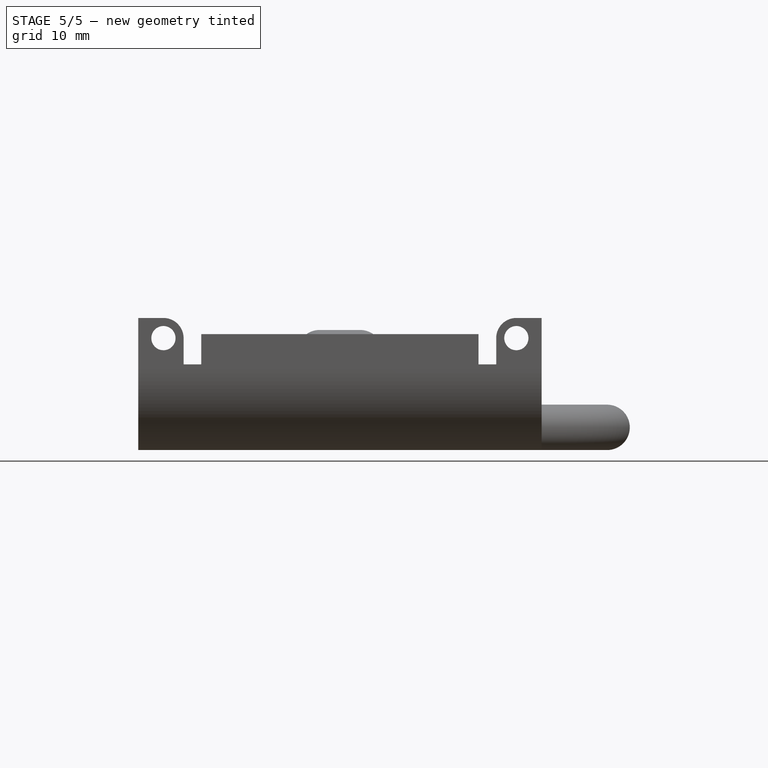
[diagram: stage 5 of 5 — front view after this stage's code; geometry added in this stage tinted green]
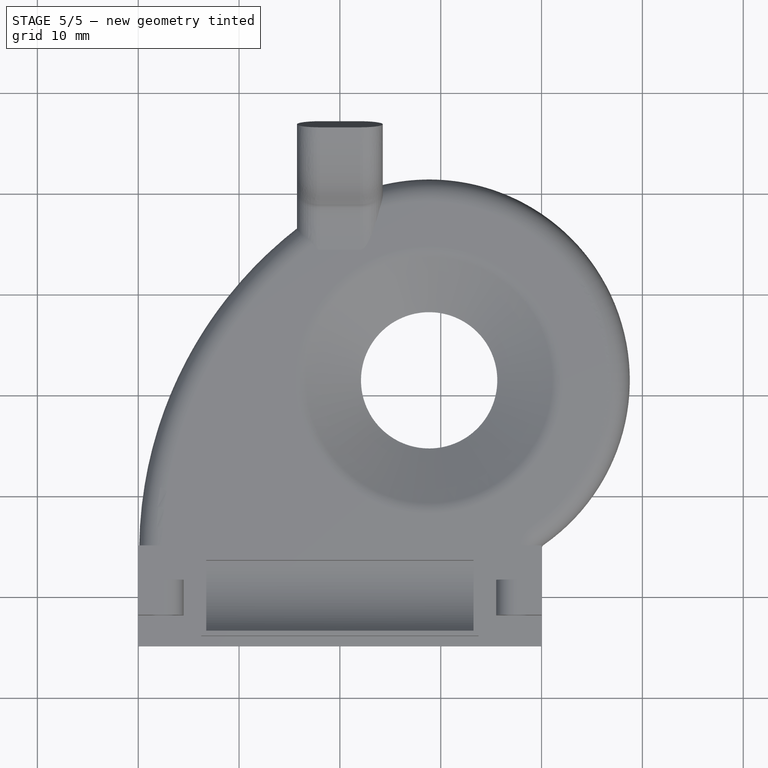
[diagram: stage 5 of 5 — top view after this stage's code; geometry added in this stage tinted green]
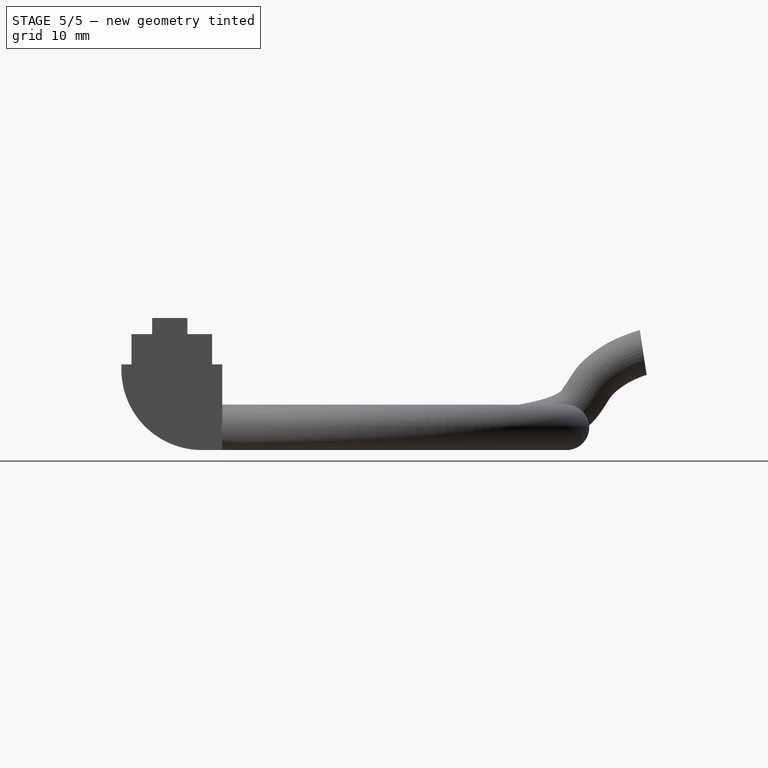
[diagram: stage 5 of 5 — right view after this stage's code; geometry added in this stage tinted green]
FEATURE [Sketcher::SketchObject] Sketch014  label="Normal"
  ExternalGeometry = -> [Sweep,Sketch009]
  MapMode = 5
  Placement = pos=(16.0402,11.2306,-3.5e-14) rot=(0.34545,0.663575,0.663575;2.47636rad)
  Support = -> [Sweep]
  sketch-geometry (3):
    g0: GeomPoint X=12.5363 Y=2.25 Z=0
    g1: LineSegment [constr] StartX=12.5363 StartY=2.25 StartZ=0 EndX=12.5363 EndY=-2.75 EndZ=0
    g2: LineSegment StartX=25.7863 StartY=2.25 StartZ=0 EndX=12.5363 EndY=-2.75 EndZ=0
  constraints (6):
    c: Symmetric(g-5,g-3,g0)
    c: Vertical(g1)
    c: Coincident(g1,g0)
    c: Coincident(g2,g-4)
    c: Coincident(g2,g1)
    c: DistanceY(g2,g0) = 5
FEATURE [Sketcher::SketchObject] Sketch015  label="SketchDrill"
  MapMode = 7
  Placement = pos=(1.25047,32.354,2.25) rot=(-0.176499,0.559817,0.809601;3.64142rad)
  Support = -> [Sketch014]
  sketch-geometry (1):
    g0: Circle CenterX=0 CenterY=0 CenterZ=0 NormalX=0 NormalY=0 NormalZ=1 AngleXU=0 Radius=1
  constraints (2):
    c: Coincident(g0,g-1)
    c: Radius(g0) = 1
FEATURE [Part::Extrusion] Extrude008  label="Drill"
  Base = -> Sketch015
  Dir = (-0.536614,0.766418,0.353057)
  DirMode = 2
  FaceMakerClass = Part::FaceMakerBullseye
  LengthFwd = 10
  LengthRev = 0
  Reversed = true
  Solid = true
  Symmetric = false
FEATURE [Part::FeaturePython] Array  label="Drilling"  # Draft array (typed FeaturePython)
  Angle = 360
  ArrayType = 1
  Axis = (0,0,1)
  Base = -> Extrude008
  Center = (8.85,21.5,0)
  Fuse = false
  IntervalAxis = (0,0,0)
  IntervalX = (1,0,0)
  IntervalY = (0,1,0)
  IntervalZ = (0,0,1)
  NumberPolar = 20
  NumberX = 2
  NumberY = 2
  NumberZ = 1
FEATURE [Sketcher::SketchObject] Sketch016  label="SketchWall"
  ExternalGeometry = -> [Cut001,Sketch007]
  sketch-geometry (5):
    g0: LineSegment [constr] StartX=-17.65 StartY=4.5 StartZ=0 EndX=17.65 EndY=4.5 EndZ=0
    g1: ArcOfCircle CenterX=20.7527 CenterY=4.5 CenterZ=0 NormalX=0 NormalY=0 NormalZ=1 AngleXU=0 Radius=28.2527 StartAngle=2.84923 EndAngle=3.14159
    g2: ArcOfCircle CenterX=20.7527 CenterY=4.5 CenterZ=0 NormalX=0 NormalY=0 NormalZ=1 AngleXU=0 Radius=27.7527 StartAngle=2.86547 EndAngle=3.14159
    g3: LineSegment StartX=-7.5 StartY=4.5 StartZ=0 EndX=-7 EndY=4.5 EndZ=0
    g4: LineSegment StartX=-6.30108 StartY=12.643 StartZ=0 EndX=-5.94875 EndY=12.066 EndZ=0
FEATURE [Part::Extrusion] Extrude009  label="Wall"
  Base = -> Sketch016
  Dir = (0,0,1)
  DirMode = 2
  FaceMakerClass = Part::FaceMakerBullseye
  LengthFwd = 4.5
  LengthRev = 0
  Solid = true
  Symmetric = false
FEATURE [Part::Cut] Cut005
  Base = -> Fusion005
  Tool = -> Fusion003
FEATURE [Part::MultiFuse] Fusion006
  Shapes = -> [Cut005,Extrude009]
FEATURE [Part::Cut] Cut006
  Base = -> Fusion006
  Tool = -> Array
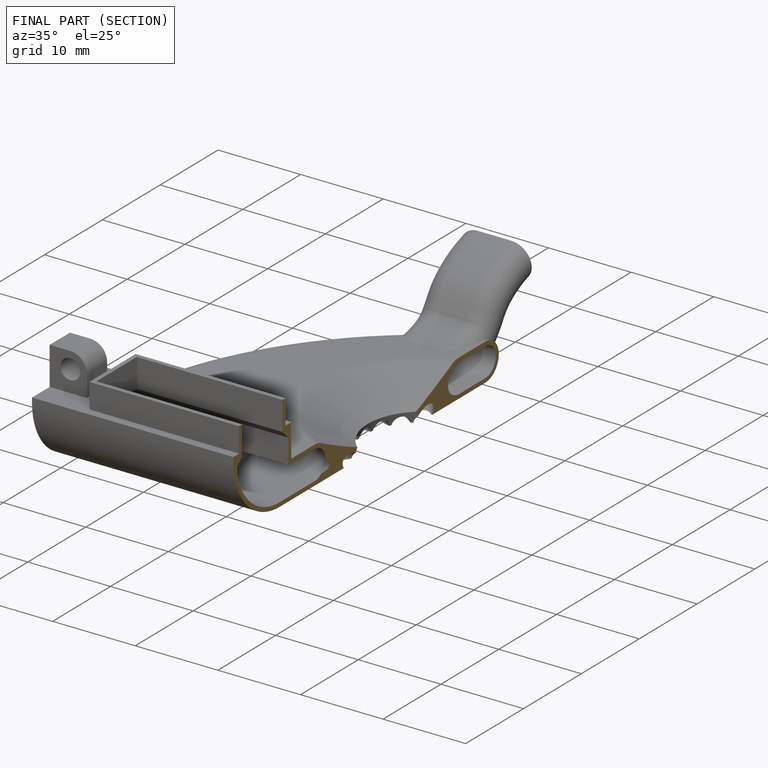
[diagram: finished part — half-section view (interior)]
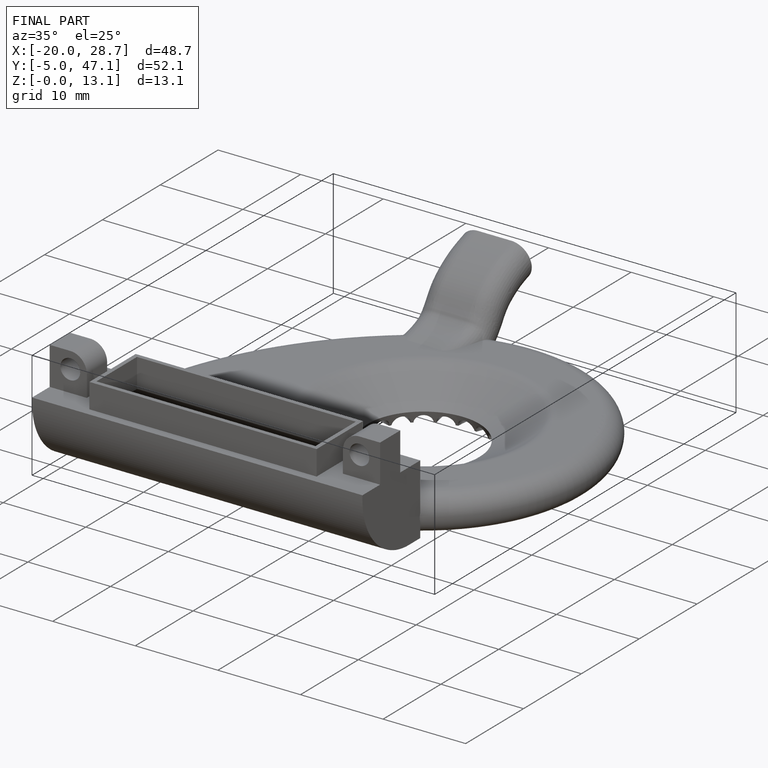
[diagram: finished part — iso view with bounding-box wireframe]
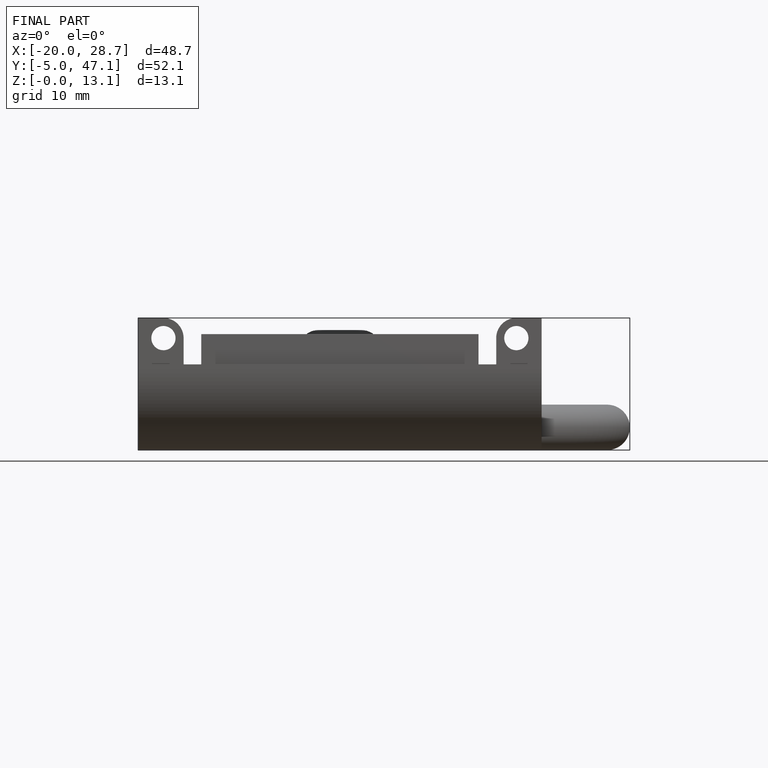
[diagram: finished part — front view with bounding-box wireframe]
